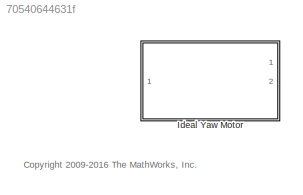
MODEL slx_70540644631f
KIND library
CONFIG AbsTol = auto
CONFIG FixedStep = auto
CONFIG MaxStep = auto
CONFIG MinStep = auto
CONFIG RelTol = 1e-3
CONFIG SampleTimeConstraint = Unconstrained
CONFIG Solver = ode45
CONFIG SolverMode = Auto
CONFIG SolverName = ode45
CONFIG StartTime = 0.0
CONFIG StopTime = 10.0
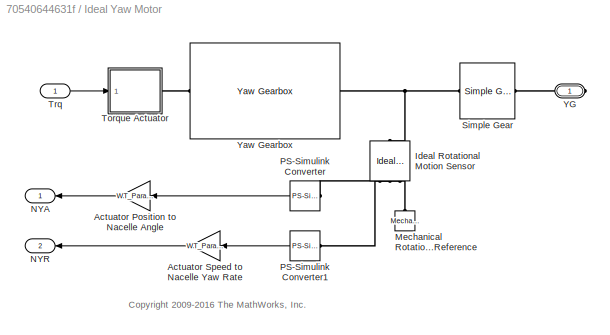
BLOCK [SubSystem] Ideal Yaw Motor
  Ports = [1, 2, 0, 0, 0, 0, 1]
  RequestExecContextInheritance = off
  Variant = off
BLOCK [Gain] Ideal Yaw Motor/Actuator Position to Nacelle Angle
  Gain = WT_Params.Yaw_Actuator.yaw_gear_diameter/WT_Params.Yaw_Actuator.yaw_ring_diameter
  OutDataTypeStr = Inherit: Inherit via internal rule
  ParamDataTypeStr = Inherit: Inherit via internal rule
  SaturateOnIntegerOverflow = off
BLOCK [Gain] Ideal Yaw Motor/Actuator Speed to Nacelle Yaw Rate
  Gain = WT_Params.Yaw_Actuator.yaw_gear_diameter/WT_Params.Yaw_Actuator.yaw_ring_diameter
  OutDataTypeStr = Inherit: Inherit via internal rule
  ParamDataTypeStr = Inherit: Inherit via internal rule
  SaturateOnIntegerOverflow = off
BLOCK [Reference] Ideal Yaw Motor/Ideal Rotational Motion Sensor  REF=fl_lib/Mechanical/Mechanical Sensors/Ideal Rotational
Motion Sensor
  Ports = [0, 0, 0, 0, 0, 1, 3]
  SourceBlock = fl_lib/Mechanical/Mechanical Sensors/Ideal Rotational\nMotion Sensor
  SourceType = Ideal Rotational\nMotion Sensor
BLOCK [Reference] Ideal Yaw Motor/Mechanical Rotational Reference  REF=fl_lib/Mechanical/Rotational Elements/Mechanical
Rotational Reference
  Ports = [0, 0, 0, 0, 0, 1]
  SourceBlock = fl_lib/Mechanical/Rotational Elements/Mechanical\nRotational Reference
  SourceType = Mechanical\nRotational Reference
BLOCK [Outport] Ideal Yaw Motor/NYA
  IconDisplay = Port number
BLOCK [Outport] Ideal Yaw Motor/NYR
  IconDisplay = Port number
  Port = 2
BLOCK [Reference] Ideal Yaw Motor/PS-Simulink Converter  REF=nesl_utility/PS-Simulink
Converter
  Ports = [0, 1, 0, 0, 0, 1]
  SourceBlock = nesl_utility/PS-Simulink\nConverter
  SourceType = PS-Simulink\nConverter
BLOCK [Reference] Ideal Yaw Motor/PS-Simulink Converter1  REF=nesl_utility/PS-Simulink
Converter
  Ports = [0, 1, 0, 0, 0, 1]
  SourceBlock = nesl_utility/PS-Simulink\nConverter
  SourceType = PS-Simulink\nConverter
BLOCK [Reference] Ideal Yaw Motor/Simple Gear  REF=sdl_lib/Gears/Simple Gear
  Ports = [0, 0, 0, 0, 0, 1, 1]
  SourceBlock = sdl_lib/Gears/Simple Gear
  SourceType = Simple Gear
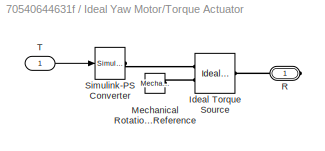
BLOCK [SubSystem] Ideal Yaw Motor/Torque Actuator
  Ports = [1, 0, 0, 0, 0, 0, 1]
  RequestExecContextInheritance = off
  Variant = off
BLOCK [Reference] Ideal Yaw Motor/Torque Actuator/Ideal Torque Source  REF=fl_lib/Mechanical/Mechanical Sources/Ideal Torque Source
  Ports = [0, 0, 0, 0, 0, 1, 2]
  SourceBlock = fl_lib/Mechanical/Mechanical Sources/Ideal Torque Source
  SourceType = Ideal Torque Source
BLOCK [Reference] Ideal Yaw Motor/Torque Actuator/Mechanical Rotational Reference  REF=fl_lib/Mechanical/Rotational Elements/Mechanical
Rotational Reference
  Ports = [0, 0, 0, 0, 0, 1]
  SourceBlock = fl_lib/Mechanical/Rotational Elements/Mechanical\nRotational Reference
  SourceType = Mechanical\nRotational Reference
BLOCK [PMIOPort] Ideal Yaw Motor/Torque Actuator/R
  Port = 1
  Side = Right
BLOCK [Reference] Ideal Yaw Motor/Torque Actuator/Simulink-PS Converter  REF=nesl_utility/Simulink-PS
Converter
  Ports = [1, 0, 0, 0, 0, 0, 1]
  SourceBlock = nesl_utility/Simulink-PS\nConverter
  SourceType = Simulink-PS\nConverter
BLOCK [Inport] Ideal Yaw Motor/Torque Actuator/T
  IconDisplay = Port number
BLOCK [Inport] Ideal Yaw Motor/Trq
  IconDisplay = Port number
BLOCK [PMIOPort] Ideal Yaw Motor/YG
  Port = 1
  Side = Right
BLOCK [Reference] Ideal Yaw Motor/Yaw Gearbox  REF=Yaw_Gearbox_Lib/Yaw Gearbox
  Ports = [0, 0, 0, 0, 0, 1, 1]
  SourceBlock = Yaw_Gearbox_Lib/Yaw Gearbox
ANNOTATION (root): <copyright redacted>
ANNOTATION Ideal Yaw Motor: <copyright redacted>
LINE Ideal Yaw Motor/Actuator Position to Nacelle Angle:1 -> Ideal Yaw Motor/NYA:1
LINE Ideal Yaw Motor/Actuator Speed to Nacelle Yaw Rate:1 -> Ideal Yaw Motor/NYR:1
LINE Ideal Yaw Motor/PS-Simulink Converter1:1 -> Ideal Yaw Motor/Actuator Speed to Nacelle Yaw Rate:1
LINE Ideal Yaw Motor/PS-Simulink Converter:1 -> Ideal Yaw Motor/Actuator Position to Nacelle Angle:1
LINE Ideal Yaw Motor/Torque Actuator/T:1 -> Ideal Yaw Motor/Torque Actuator/Simulink-PS Converter:1
LINE Ideal Yaw Motor/Trq:1 -> Ideal Yaw Motor/Torque Actuator:1
PNET net1: Ideal Yaw Motor/Ideal Rotational Motion Sensor:LConn1 -- Ideal Yaw Motor/Simple Gear:LConn1 -- Ideal Yaw Motor/Yaw Gearbox:RConn1
PLINE Ideal Yaw Motor/Ideal Rotational Motion Sensor:RConn1 -- Ideal Yaw Motor/Mechanical Rotational Reference:LConn1
PLINE Ideal Yaw Motor/Ideal Rotational Motion Sensor:RConn2 -- Ideal Yaw Motor/PS-Simulink Converter1:LConn1
PLINE Ideal Yaw Motor/Ideal Rotational Motion Sensor:RConn3 -- Ideal Yaw Motor/PS-Simulink Converter:LConn1
PLINE Ideal Yaw Motor/Simple Gear:RConn1 -- Ideal Yaw Motor/YG:RConn1
PLINE Ideal Yaw Motor/Torque Actuator/Ideal Torque Source:LConn1 -- Ideal Yaw Motor/Torque Actuator/R:RConn1
PLINE Ideal Yaw Motor/Torque Actuator/Ideal Torque Source:RConn1 -- Ideal Yaw Motor/Torque Actuator/Simulink-PS Converter:RConn1
PLINE Ideal Yaw Motor/Torque Actuator/Ideal Torque Source:RConn2 -- Ideal Yaw Motor/Torque Actuator/Mechanical Rotational Reference:LConn1
PLINE Ideal Yaw Motor/Torque Actuator:RConn1 -- Ideal Yaw Motor/Yaw Gearbox:LConn1
note: PNET lines group multi-terminal physical nets as a canonical sorted terminal list (undirected conserving connections); 2-terminal nets keep the pairwise PLINE form
